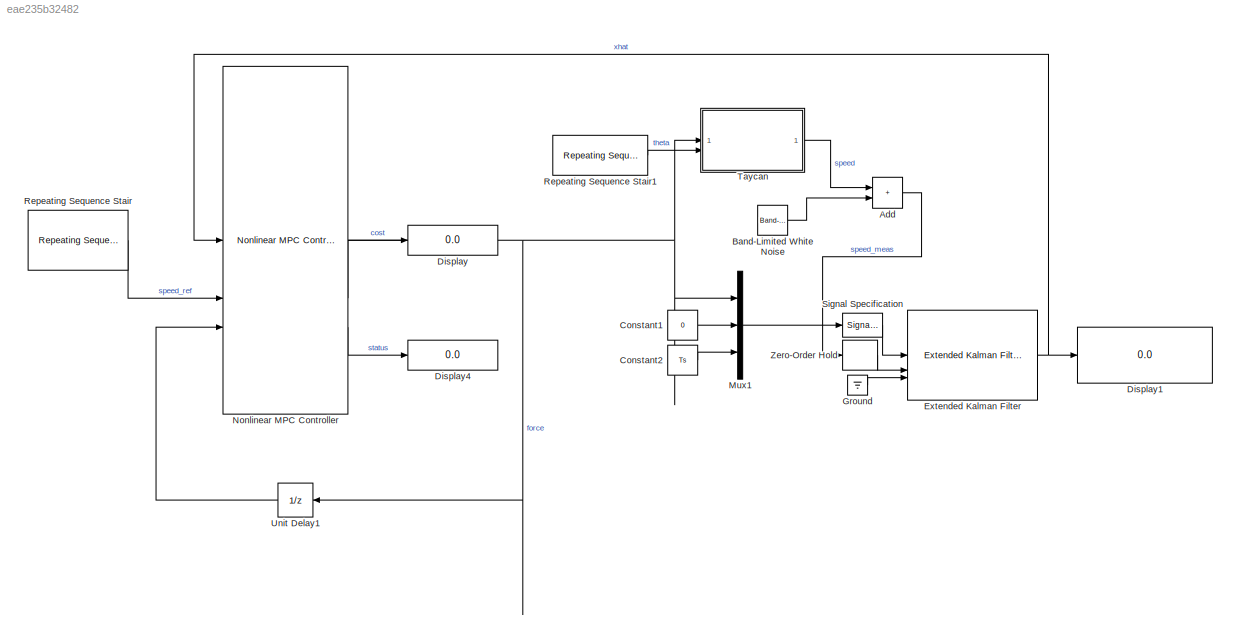
MODEL slx_eae235b32482
KIND model
CONFIG AbsTol = auto
CONFIG EnableMultiTasking = off
CONFIG FixedStep = Tsim
CONFIG MaxStep = auto
CONFIG MinStep = auto
CONFIG RelTol = 1e-3
CONFIG SampleTimeConstraint = Unconstrained
CONFIG SolverName = FixedStepAuto
CONFIG StartTime = 0.0
CONFIG StopTime = 80
BLOCK [Sum] Add
  IconShape = rectangular
BLOCK [Reference] Band-Limited White Noise  REF=simulink/Sources/Band-Limited
White Noise
  SourceBlock = simulink/Sources/Band-Limited\nWhite Noise
  SourceType = Band-Limited White Noise.
BLOCK [Constant] Constant1
  Value = 0
BLOCK [Constant] Constant2
  Value = Ts
BLOCK [Display] Display
  Decimation = 1
BLOCK [Display] Display1
  Decimation = 1
BLOCK [Display] Display4
  Decimation = 1
BLOCK [Reference] Extended Kalman Filter  REF=sharedTrackingLibrary/Extended Kalman Filter
  LibrarySourceBlock = cstblocks/State Estimation/Extended Kalman Filter
  SourceBlock = sharedTrackingLibrary/Extended Kalman Filter
  SourceType = Extended Kalman Filter
BLOCK [Ground] Ground
BLOCK [Mux] Mux1
  DisplayOption = bar
  Inputs = 3
BLOCK [Reference] Nonlinear MPC Controller  REF=mpclib/Nonlinear MPC Controller  (lib defined in mdl_ae329e0e0455)
  SourceBlock = mpclib/Nonlinear MPC Controller
  SourceType = NonlinearMPC
BLOCK [Reference] Repeating Sequence Stair  REF=simulink/Sources/Repeating
Sequence
Stair
  SourceBlock = simulink/Sources/Repeating\nSequence\nStair
  SourceType = Repeating Sequence Stair
BLOCK [Reference] Repeating Sequence Stair1  REF=simulink/Sources/Repeating
Sequence
Stair
  SourceBlock = simulink/Sources/Repeating\nSequence\nStair
  SourceType = Repeating Sequence Stair
BLOCK [SignalSpecification] Signal Specification
  Dimensions = 3
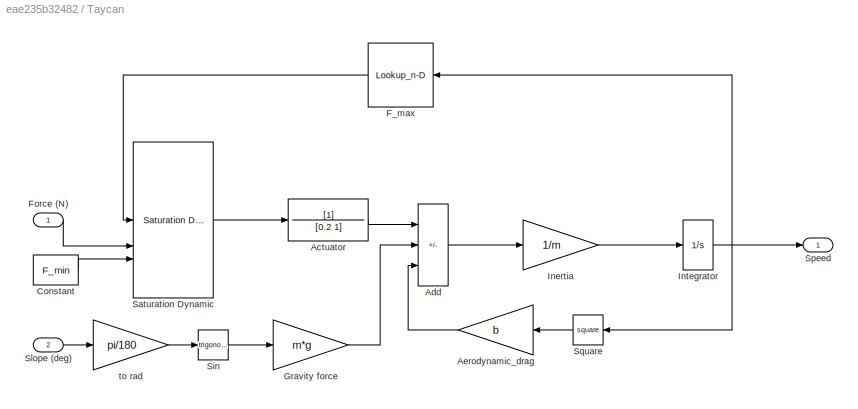
BLOCK [SubSystem] Taycan
BLOCK [TransferFcn] Taycan/Actuator
  Denominator = [0.2 1]
BLOCK [Sum] Taycan/Add
  IconShape = rectangular
  Inputs = +--
BLOCK [Gain] Taycan/Aerodynamic_drag
  Gain = b
BLOCK [Constant] Taycan/Constant
  Value = F_min
BLOCK [Lookup_n-D] Taycan/F_max
  BreakpointsForDimension1 = v_to_F_max
  ExtrapMethod = Clip
  InputPortMap = u0
  InternalRulePriority = Speed
  NumberOfTableDimensions = 1
  RndMeth = Simplest
  Table = F_max
BLOCK [Inport] Taycan/Force (N)
BLOCK [Gain] Taycan/Gravity force
  Gain = m*g
BLOCK [Gain] Taycan/Inertia
  Gain = 1/m
BLOCK [Integrator] Taycan/Integrator
BLOCK [Reference] Taycan/Saturation Dynamic  REF=simulink/Discontinuities/Saturation
Dynamic
  SourceBlock = simulink/Discontinuities/Saturation\nDynamic
  SourceType = Saturation Dynamic
BLOCK [Trigonometry] Taycan/Sin
BLOCK [Inport] Taycan/Slope (deg)
  Port = 2
BLOCK [Outport] Taycan/Speed
BLOCK [Math] Taycan/Square
  Operator = square
BLOCK [Gain] Taycan/to rad
  Gain = pi/180
BLOCK [UnitDelay] Unit Delay1
  HasFrameUpgradeWarning = on
  SampleTime = Ts
BLOCK [ZeroOrderHold] Zero-Order Hold
  SampleTime = Ts
LINE Add:1 -> Zero-Order Hold:1
LINE Band-Limited White Noise:1 -> Add:2
LINE Constant1:1 -> Mux1:2
LINE Constant2:1 -> Mux1:3
NET Extended Kalman Filter:1 -> Display1:1, Nonlinear MPC Controller:1
LINE Ground:1 -> Extended Kalman Filter:3
LINE Mux1:1 -> Signal Specification:1
NET Nonlinear MPC Controller:1 -> Mux1:1, Taycan:1, Unit Delay1:1
LINE Nonlinear MPC Controller:2 -> Display:1
LINE Nonlinear MPC Controller:3 -> Display4:1
LINE Repeating Sequence Stair1:1 -> Taycan:2
LINE Repeating Sequence Stair:1 -> Nonlinear MPC Controller:2
LINE Signal Specification:1 -> Extended Kalman Filter:1
LINE Taycan/Actuator:1 -> Taycan/Add:1
LINE Taycan/Add:1 -> Taycan/Inertia:1
LINE Taycan/Aerodynamic_drag:1 -> Taycan/Add:3
LINE Taycan/Constant:1 -> Taycan/Saturation Dynamic:3
LINE Taycan/F_max:1 -> Taycan/Saturation Dynamic:1
LINE Taycan/Force (N):1 -> Taycan/Saturation Dynamic:2
LINE Taycan/Gravity force:1 -> Taycan/Add:2
LINE Taycan/Inertia:1 -> Taycan/Integrator:1
NET Taycan/Integrator:1 -> Taycan/F_max:1, Taycan/Speed:1, Taycan/Square:1
LINE Taycan/Saturation Dynamic:1 -> Taycan/Actuator:1
LINE Taycan/Sin:1 -> Taycan/Gravity force:1
LINE Taycan/Slope (deg):1 -> Taycan/to rad:1
LINE Taycan/Square:1 -> Taycan/Aerodynamic_drag:1
LINE Taycan/to rad:1 -> Taycan/Sin:1
LINE Taycan:1 -> Add:1
LINE Unit Delay1:1 -> Nonlinear MPC Controller:3
LINE Zero-Order Hold:1 -> Extended Kalman Filter:2
note: NET lines group one-source signal fan-out (src -> all destinations, sorted); 1:1 wires keep LINE
